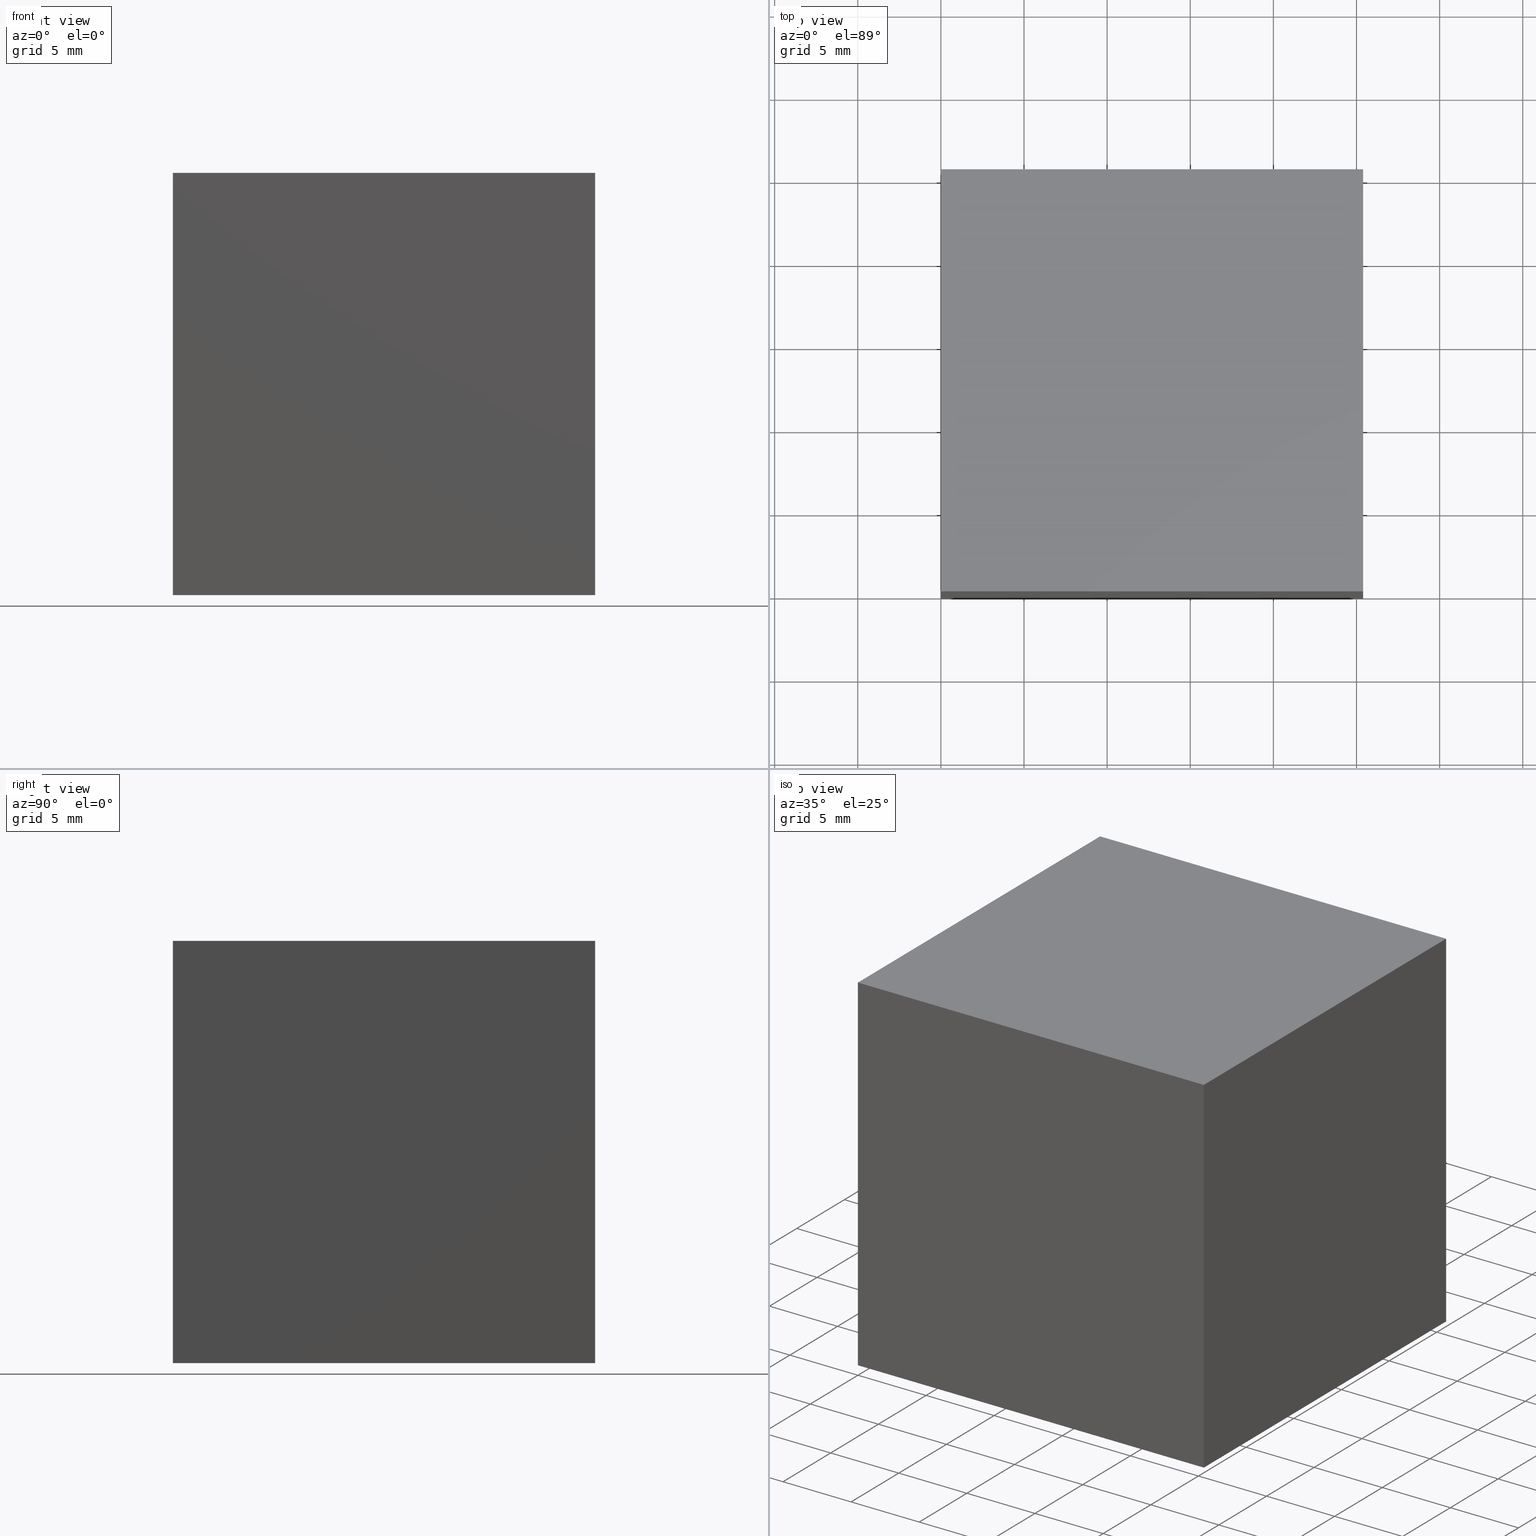
[diagram: canonical four-view strip — front | top / right | iso, engineering-drawing reading convention]
A machine part, canonical four-view strip (front | top / right | iso — engineering-drawing reading convention). The complete STEP part file that produces these views, byte-faithful:
ISO-10303-21;
HEADER;
FILE_DESCRIPTION (( 'STEP AP214' ),
    '1' );
FILE_NAME ('354505.STEP',
    '2019-08-16T02:53:26',
    ( 'user' ),
    ( '΢���й�' ),
    'SwSTEP 2.0',
    'SolidWorks 2016',
    '' );
FILE_SCHEMA (( 'AUTOMOTIVE_DESIGN' ));
ENDSEC;

DATA;
#1 = ORIENTED_EDGE ( 'NONE', *, *, #146, .F. ) ;
#2 = VERTEX_POINT ( 'NONE', #144 ) ;
#3 =( GEOMETRIC_REPRESENTATION_CONTEXT ( 3 ) GLOBAL_UNCERTAINTY_ASSIGNED_CONTEXT ( ( #152 ) ) GLOBAL_UNIT_ASSIGNED_CONTEXT ( ( #7, #140, #12 ) ) REPRESENTATION_CONTEXT ( 'NONE', 'WORKASPACE' ) );
#4 = LINE ( 'NONE', #70, #71 ) ;
#5 = DIRECTION ( 'NONE',  ( 0.0000000000000000000, 0.0000000000000000000, -1.000000000000000000 ) ) ;
#6 = FACE_OUTER_BOUND ( 'NONE', #54, .T. ) ;
#7 =( LENGTH_UNIT ( ) NAMED_UNIT ( * ) SI_UNIT ( .MILLI., .METRE. ) );
#8 = ORIENTED_EDGE ( 'NONE', *, *, #181, .F. ) ;
#9 = CARTESIAN_POINT ( 'NONE',  ( 0.0000000000000000000, 0.0000000000000000000, -25.39999999999999900 ) ) ;
#10 = CARTESIAN_POINT ( 'NONE',  ( 25.39999999999999900, 25.39999999999999900, 0.0000000000000000000 ) ) ;
#11 = FILL_AREA_STYLE_COLOUR ( '', #158 ) ;
#12 =( NAMED_UNIT ( * ) SI_UNIT ( $, .STERADIAN. ) SOLID_ANGLE_UNIT ( ) );
#13 = LINE ( 'NONE', #24, #118 ) ;
#14 = ADVANCED_FACE ( 'NONE', ( #228 ), #285, .T. ) ;
#15 = DIRECTION ( 'NONE',  ( 0.7071067811865474600, 0.0000000000000000000, 0.7071067811865474600 ) ) ;
#16 = ORIENTED_EDGE ( 'NONE', *, *, #129, .T. ) ;
#17 = MANIFOLD_SOLID_BREP ( '͹̨-����2', #246 ) ;
#18 = VECTOR ( 'NONE', #189, 1000.000000000000000 ) ;
#19 = CARTESIAN_POINT ( 'NONE',  ( 25.39999999999999900, 0.0000000000000000000, 0.0000000000000000000 ) ) ;
#20 = STYLED_ITEM ( 'NONE', ( #220 ), #298 ) ;
#21 = LINE ( 'NONE', #103, #216 ) ;
#22 = VERTEX_POINT ( 'NONE', #271 ) ;
#23 = LINE ( 'NONE', #250, #203 ) ;
#24 = CARTESIAN_POINT ( 'NONE',  ( 0.0000000000000000000, 0.0000000000000000000, -25.39999999999999900 ) ) ;
#25 = FACE_OUTER_BOUND ( 'NONE', #172, .T. ) ;
#26 = DIRECTION ( 'NONE',  ( -0.0000000000000000000, -0.0000000000000000000, 1.000000000000000000 ) ) ;
#27 = ORIENTED_EDGE ( 'NONE', *, *, #146, .T. ) ;
#28 = DIRECTION ( 'NONE',  ( 0.0000000000000000000, 0.0000000000000000000, 1.000000000000000000 ) ) ;
#29 = FACE_OUTER_BOUND ( 'NONE', #237, .T. ) ;
#30 = PRESENTATION_LAYER_ASSIGNMENT (  '', '', ( #20 ) ) ;
#31 = ORIENTED_EDGE ( 'NONE', *, *, #192, .F. ) ;
#32 = CARTESIAN_POINT ( 'NONE',  ( 25.39999999999999900, 0.0000000000000000000, -25.39999999999999900 ) ) ;
#33 = SURFACE_STYLE_USAGE ( .BOTH. , #294 ) ;
#34 = DIRECTION ( 'NONE',  ( 0.0000000000000000000, 0.0000000000000000000, 1.000000000000000000 ) ) ;
#35 =( NAMED_UNIT ( * ) PLANE_ANGLE_UNIT ( ) SI_UNIT ( $, .RADIAN. ) );
#36 = ORIENTED_EDGE ( 'NONE', *, *, #122, .F. ) ;
#37 = VERTEX_POINT ( 'NONE', #99 ) ;
#38 = UNCERTAINTY_MEASURE_WITH_UNIT (LENGTH_MEASURE( 1.000000000000000100E-005 ), #82, 'distance_accuracy_value', 'NONE');
#39 = LINE ( 'NONE', #151, #145 ) ;
#40 = DIRECTION ( 'NONE',  ( -0.0000000000000000000, -1.000000000000000000, -0.0000000000000000000 ) ) ;
#41 = MECHANICAL_DESIGN_GEOMETRIC_PRESENTATION_REPRESENTATION (  '', ( #20 ), #58 ) ;
#42 = FILL_AREA_STYLE_COLOUR ( '', #275 ) ;
#43 = DIRECTION ( 'NONE',  ( 0.0000000000000000000, 0.0000000000000000000, -1.000000000000000000 ) ) ;
#44 = CARTESIAN_POINT ( 'NONE',  ( 25.39999999999999900, 25.39999999999999900, 0.0000000000000000000 ) ) ;
#45 = EDGE_LOOP ( 'NONE', ( #268, #219, #8, #47 ) ) ;
#46 = VECTOR ( 'NONE', #136, 1000.000000000000000 ) ;
#47 = ORIENTED_EDGE ( 'NONE', *, *, #122, .T. ) ;
#48 = DIRECTION ( 'NONE',  ( 0.0000000000000000000, -1.000000000000000000, -0.0000000000000000000 ) ) ;
#49 = ORIENTED_EDGE ( 'NONE', *, *, #95, .F. ) ;
#50 = DIRECTION ( 'NONE',  ( 0.0000000000000000000, -1.000000000000000000, 0.0000000000000000000 ) ) ;
#51 = DIRECTION ( 'NONE',  ( 1.000000000000000000, -0.0000000000000000000, -0.0000000000000000000 ) ) ;
#52 = ADVANCED_FACE ( 'NONE', ( #93 ), #244, .T. ) ;
#53 = VECTOR ( 'NONE', #215, 1000.000000000000100 ) ;
#54 = EDGE_LOOP ( 'NONE', ( #113, #295, #90, #123 ) ) ;
#55 =( LENGTH_UNIT ( ) NAMED_UNIT ( * ) SI_UNIT ( .MILLI., .METRE. ) );
#56 = PRODUCT_CONTEXT ( 'NONE', #177, 'mechanical' ) ;
#57 = DIRECTION ( 'NONE',  ( 1.000000000000000000, -0.0000000000000000000, -0.0000000000000000000 ) ) ;
#58 =( GEOMETRIC_REPRESENTATION_CONTEXT ( 3 ) GLOBAL_UNCERTAINTY_ASSIGNED_CONTEXT ( ( #243 ) ) GLOBAL_UNIT_ASSIGNED_CONTEXT ( ( #127, #297, #153 ) ) REPRESENTATION_CONTEXT ( 'NONE', 'WORKASPACE' ) );
#59 = ORIENTED_EDGE ( 'NONE', *, *, #110, .F. ) ;
#60 = AXIS2_PLACEMENT_3D ( 'NONE', #207, #240, #143 ) ;
#61 = ORIENTED_EDGE ( 'NONE', *, *, #226, .T. ) ;
#62 = LINE ( 'NONE', #80, #209 ) ;
#63 = CARTESIAN_POINT ( 'NONE',  ( 0.0000000000000000000, 25.39999999999999900, -25.39999999999999900 ) ) ;
#64 = DIRECTION ( 'NONE',  ( -0.7071067811865474600, -0.0000000000000000000, -0.7071067811865474600 ) ) ;
#65 = EDGE_LOOP ( 'NONE', ( #16, #36, #191, #208 ) ) ;
#66 = LINE ( 'NONE', #242, #199 ) ;
#67 = CARTESIAN_POINT ( 'NONE',  ( 0.0000000000000000000, 25.39999999999999900, 0.0000000000000000000 ) ) ;
#68 = VERTEX_POINT ( 'NONE', #19 ) ;
#69 = VECTOR ( 'NONE', #116, 1000.000000000000000 ) ;
#70 = CARTESIAN_POINT ( 'NONE',  ( 0.0000000000000000000, 25.39999999999999900, 0.0000000000000000000 ) ) ;
#71 = VECTOR ( 'NONE', #120, 1000.000000000000000 ) ;
#72 = DIRECTION ( 'NONE',  ( -0.7071067811865475700, 0.0000000000000000000, 0.7071067811865475700 ) ) ;
#73 = PRODUCT_DEFINITION_CONTEXT ( 'detailed design', #229, 'design' ) ;
#74 = ADVANCED_FACE ( 'NONE', ( #255 ), #126, .T. ) ;
#75 = DIRECTION ( 'NONE',  ( -0.7071067811865474600, -0.0000000000000000000, -0.7071067811865474600 ) ) ;
#76 = CLOSED_SHELL ( 'NONE', ( #149, #174, #293, #98, #74 ) ) ;
#77 = LINE ( 'NONE', #168, #130 ) ;
#78 = SURFACE_SIDE_STYLE ('',( #84 ) ) ;
#79 = APPLICATION_PROTOCOL_DEFINITION ( 'draft international standard', 'automotive_design', 1998, #229 ) ;
#80 = CARTESIAN_POINT ( 'NONE',  ( 0.0000000000000000000, 25.39999999999999900, -25.39999999999999900 ) ) ;
#81 = LINE ( 'NONE', #32, #260 ) ;
#82 =( LENGTH_UNIT ( ) NAMED_UNIT ( * ) SI_UNIT ( .MILLI., .METRE. ) );
#83 = ORIENTED_EDGE ( 'NONE', *, *, #270, .T. ) ;
#84 = SURFACE_STYLE_FILL_AREA ( #204 ) ;
#85 = CARTESIAN_POINT ( 'NONE',  ( 25.39999999999999900, 25.39999999999999900, 0.0000000000000000000 ) ) ;
#86 = LINE ( 'NONE', #159, #266 ) ;
#87 = FILL_AREA_STYLE ('',( #42 ) ) ;
#88 = AXIS2_PLACEMENT_3D ( 'NONE', #205, #91, #263 ) ;
#89 = PLANE ( 'NONE',  #257 ) ;
#90 = ORIENTED_EDGE ( 'NONE', *, *, #162, .F. ) ;
#91 = DIRECTION ( 'NONE',  ( 0.0000000000000000000, -1.000000000000000000, -0.0000000000000000000 ) ) ;
#92 = UNCERTAINTY_MEASURE_WITH_UNIT (LENGTH_MEASURE( 1.000000000000000100E-005 ), #55, 'distance_accuracy_value', 'NONE');
#93 = FACE_OUTER_BOUND ( 'NONE', #232, .T. ) ;
#94 = PRESENTATION_STYLE_ASSIGNMENT (( #265 ) ) ;
#95 = EDGE_CURVE ( 'NONE', #22, #233, #125, .T. ) ;
#96 = ORIENTED_EDGE ( 'NONE', *, *, #192, .T. ) ;
#97 = LINE ( 'NONE', #111, #142 ) ;
#98 = ADVANCED_FACE ( 'NONE', ( #286 ), #196, .F. ) ;
#99 = CARTESIAN_POINT ( 'NONE',  ( 25.39999999999999900, 0.0000000000000000000, -25.39999999999999900 ) ) ;
#100 = ORIENTED_EDGE ( 'NONE', *, *, #95, .T. ) ;
#101 = PLANE ( 'NONE',  #287 ) ;
#102 = LINE ( 'NONE', #112, #251 ) ;
#103 = CARTESIAN_POINT ( 'NONE',  ( 0.0000000000000000000, 25.39999999999999900, -25.39999999999999900 ) ) ;
#104 =( NAMED_UNIT ( * ) SI_UNIT ( $, .STERADIAN. ) SOLID_ANGLE_UNIT ( ) );
#105 = AXIS2_PLACEMENT_3D ( 'NONE', #179, #34, #206 ) ;
#106 = COLOUR_RGB ( '',1.000000000000000000, 1.000000000000000000, 1.000000000000000000 ) ;
#107 = VERTEX_POINT ( 'NONE', #9 ) ;
#108 = EDGE_LOOP ( 'NONE', ( #166, #165, #156 ) ) ;
#109 = CARTESIAN_POINT ( 'NONE',  ( 0.0000000000000000000, 25.39999999999999900, 0.0000000000000000000 ) ) ;
#110 = EDGE_CURVE ( 'NONE', #197, #248, #132, .T. ) ;
#111 = CARTESIAN_POINT ( 'NONE',  ( 0.0000000000000000000, 0.0000000000000000000, 0.0000000000000000000 ) ) ;
#112 = CARTESIAN_POINT ( 'NONE',  ( 25.39999999999999900, 25.39999999999999900, -25.39999999999999900 ) ) ;
#113 = ORIENTED_EDGE ( 'NONE', *, *, #239, .T. ) ;
#114 = PRESENTATION_STYLE_ASSIGNMENT (( #33 ) ) ;
#115 = ORIENTED_EDGE ( 'NONE', *, *, #256, .T. ) ;
#116 = DIRECTION ( 'NONE',  ( 1.000000000000000000, 0.0000000000000000000, 0.0000000000000000000 ) ) ;
#117 = SURFACE_SIDE_STYLE ('',( #284 ) ) ;
#118 = VECTOR ( 'NONE', #64, 1000.000000000000100 ) ;
#119 = AXIS2_PLACEMENT_3D ( 'NONE', #141, #48, #194 ) ;
#120 = DIRECTION ( 'NONE',  ( -0.0000000000000000000, -0.0000000000000000000, 1.000000000000000000 ) ) ;
#121 = DIRECTION ( 'NONE',  ( 0.0000000000000000000, 0.0000000000000000000, -1.000000000000000000 ) ) ;
#122 = EDGE_CURVE ( 'NONE', #254, #68, #23, .T. ) ;
#123 = ORIENTED_EDGE ( 'NONE', *, *, #198, .T. ) ;
#124 = PLANE ( 'NONE',  #190 ) ;
#125 = LINE ( 'NONE', #283, #69 ) ;
#126 = PLANE ( 'NONE',  #88 ) ;
#127 =( LENGTH_UNIT ( ) NAMED_UNIT ( * ) SI_UNIT ( .MILLI., .METRE. ) );
#128 = APPLICATION_PROTOCOL_DEFINITION ( 'draft international standard', 'automotive_design', 1998, #177 ) ;
#129 = EDGE_CURVE ( 'NONE', #212, #68, #77, .T. ) ;
#130 = VECTOR ( 'NONE', #57, 1000.000000000000000 ) ;
#131 = ORIENTED_EDGE ( 'NONE', *, *, #139, .F. ) ;
#132 = LINE ( 'NONE', #171, #193 ) ;
#133 = DIRECTION ( 'NONE',  ( -1.000000000000000000, 0.0000000000000000000, -0.0000000000000000000 ) ) ;
#134 = SURFACE_STYLE_FILL_AREA ( #87 ) ;
#135 = PRODUCT_DEFINITION ( 'δ֪', '', #154, #73 ) ;
#136 = DIRECTION ( 'NONE',  ( -0.0000000000000000000, -1.000000000000000000, -0.0000000000000000000 ) ) ;
#137 = CARTESIAN_POINT ( 'NONE',  ( 0.0000000000000000000, 0.0000000000000000000, -25.39999999999999900 ) ) ;
#138 = EDGE_LOOP ( 'NONE', ( #262, #241, #49 ) ) ;
#139 = EDGE_CURVE ( 'NONE', #22, #2, #62, .T. ) ;
#140 =( NAMED_UNIT ( * ) PLANE_ANGLE_UNIT ( ) SI_UNIT ( $, .RADIAN. ) );
#141 = CARTESIAN_POINT ( 'NONE',  ( 0.0000000000000000000, 25.39999999999999900, 0.0000000000000000000 ) ) ;
#142 = VECTOR ( 'NONE', #26, 1000.000000000000000 ) ;
#143 = DIRECTION ( 'NONE',  ( 0.7071067811865474600, 0.0000000000000000000, 0.7071067811865474600 ) ) ;
#144 = CARTESIAN_POINT ( 'NONE',  ( 0.0000000000000000000, 0.0000000000000000000, -25.39999999999999900 ) ) ;
#145 = VECTOR ( 'NONE', #247, 1000.000000000000000 ) ;
#146 = EDGE_CURVE ( 'NONE', #248, #2, #66, .T. ) ;
#147 = VERTEX_POINT ( 'NONE', #167 ) ;
#148 = VECTOR ( 'NONE', #51, 1000.000000000000000 ) ;
#149 = ADVANCED_FACE ( 'NONE', ( #188 ), #150, .F. ) ;
#150 = PLANE ( 'NONE',  #155 ) ;
#151 = CARTESIAN_POINT ( 'NONE',  ( 25.39999999999999900, 25.39999999999999900, -25.39999999999999900 ) ) ;
#152 = UNCERTAINTY_MEASURE_WITH_UNIT (LENGTH_MEASURE( 1.000000000000000100E-005 ), #7, 'distance_accuracy_value', 'NONE');
#153 =( NAMED_UNIT ( * ) SI_UNIT ( $, .STERADIAN. ) SOLID_ANGLE_UNIT ( ) );
#154 = PRODUCT_DEFINITION_FORMATION_WITH_SPECIFIED_SOURCE ( '�κ�', '', #221, .NOT_KNOWN. ) ;
#155 = AXIS2_PLACEMENT_3D ( 'NONE', #10, #121, #201 ) ;
#156 = ORIENTED_EDGE ( 'NONE', *, *, #213, .F. ) ;
#157 = EDGE_CURVE ( 'NONE', #37, #248, #81, .T. ) ;
#158 = COLOUR_RGB ( '',1.000000000000000000, 1.000000000000000000, 1.000000000000000000 ) ;
#159 = CARTESIAN_POINT ( 'NONE',  ( 0.0000000000000000000, 25.39999999999999900, -25.39999999999999900 ) ) ;
#160 = LINE ( 'NONE', #225, #148 ) ;
#161 = CARTESIAN_POINT ( 'NONE',  ( 0.0000000000000000000, 25.39999999999999900, 0.0000000000000000000 ) ) ;
#162 = EDGE_CURVE ( 'NONE', #147, #291, #4, .T. ) ;
#163 = PLANE ( 'NONE',  #231 ) ;
#164 = CARTESIAN_POINT ( 'NONE',  ( 25.39999999999999900, 0.0000000000000000000, 0.0000000000000000000 ) ) ;
#165 = ORIENTED_EDGE ( 'NONE', *, *, #239, .F. ) ;
#166 = ORIENTED_EDGE ( 'NONE', *, *, #129, .F. ) ;
#167 = CARTESIAN_POINT ( 'NONE',  ( 0.0000000000000000000, 25.39999999999999900, -25.39999999999999900 ) ) ;
#168 = CARTESIAN_POINT ( 'NONE',  ( 25.39999999999999900, 0.0000000000000000000, 0.0000000000000000000 ) ) ;
#169 = FACE_OUTER_BOUND ( 'NONE', #138, .T. ) ;
#170 = PRODUCT_RELATED_PRODUCT_CATEGORY ( 'part', '', ( #221 ) ) ;
#171 = CARTESIAN_POINT ( 'NONE',  ( 25.39999999999999900, 25.39999999999999900, 0.0000000000000000000 ) ) ;
#172 = EDGE_LOOP ( 'NONE', ( #27, #115, #301 ) ) ;
#173 = CARTESIAN_POINT ( 'NONE',  ( 25.39999999999999900, 25.39999999999999900, 0.0000000000000000000 ) ) ;
#174 = ADVANCED_FACE ( 'NONE', ( #230 ), #124, .F. ) ;
#175 = EDGE_CURVE ( 'NONE', #291, #254, #160, .T. ) ;
#176 = EDGE_LOOP ( 'NONE', ( #187, #281, #202 ) ) ;
#177 = APPLICATION_CONTEXT ( 'automotive_design' ) ;
#178 = DIRECTION ( 'NONE',  ( 0.0000000000000000000, -1.000000000000000000, 0.0000000000000000000 ) ) ;
#179 = CARTESIAN_POINT ( 'NONE',  ( 0.0000000000000000000, 0.0000000000000000000, 0.0000000000000000000 ) ) ;
#180 = DIRECTION ( 'NONE',  ( 1.000000000000000000, 0.0000000000000000000, -0.0000000000000000000 ) ) ;
#181 = EDGE_CURVE ( 'NONE', #254, #147, #21, .T. ) ;
#182 = ORIENTED_EDGE ( 'NONE', *, *, #157, .F. ) ;
#183 = DIRECTION ( 'NONE',  ( 1.000000000000000000, -0.0000000000000000000, 0.0000000000000000000 ) ) ;
#184 = ORIENTED_EDGE ( 'NONE', *, *, #139, .T. ) ;
#185 = CARTESIAN_POINT ( 'NONE',  ( 0.0000000000000000000, 0.0000000000000000000, 0.0000000000000000000 ) ) ;
#186 = DIRECTION ( 'NONE',  ( 0.0000000000000000000, -1.000000000000000000, 0.0000000000000000000 ) ) ;
#187 = ORIENTED_EDGE ( 'NONE', *, *, #175, .T. ) ;
#188 = FACE_OUTER_BOUND ( 'NONE', #65, .T. ) ;
#189 = DIRECTION ( 'NONE',  ( 1.000000000000000000, 0.0000000000000000000, 0.0000000000000000000 ) ) ;
#190 = AXIS2_PLACEMENT_3D ( 'NONE', #292, #72, #15 ) ;
#191 = ORIENTED_EDGE ( 'NONE', *, *, #175, .F. ) ;
#192 = EDGE_CURVE ( 'NONE', #233, #37, #39, .T. ) ;
#193 = VECTOR ( 'NONE', #178, 1000.000000000000000 ) ;
#194 = DIRECTION ( 'NONE',  ( 0.0000000000000000000, 0.0000000000000000000, -1.000000000000000000 ) ) ;
#195 = SHAPE_DEFINITION_REPRESENTATION ( #252, #298 ) ;
#196 = PLANE ( 'NONE',  #119 ) ;
#197 = VERTEX_POINT ( 'NONE', #173 ) ;
#198 = EDGE_CURVE ( 'NONE', #147, #107, #86, .T. ) ;
#199 = VECTOR ( 'NONE', #299, 1000.000000000000100 ) ;
#200 = ADVANCED_FACE ( 'NONE', ( #29 ), #258, .T. ) ;
#201 = DIRECTION ( 'NONE',  ( -1.000000000000000000, 0.0000000000000000000, -0.0000000000000000000 ) ) ;
#202 = ORIENTED_EDGE ( 'NONE', *, *, #162, .T. ) ;
#203 = VECTOR ( 'NONE', #296, 1000.000000000000000 ) ;
#204 = FILL_AREA_STYLE ('',( #234 ) ) ;
#205 = CARTESIAN_POINT ( 'NONE',  ( 0.0000000000000000000, 0.0000000000000000000, 0.0000000000000000000 ) ) ;
#206 = DIRECTION ( 'NONE',  ( 1.000000000000000000, 0.0000000000000000000, 0.0000000000000000000 ) ) ;
#207 = CARTESIAN_POINT ( 'NONE',  ( 25.39999999999999900, 25.39999999999999900, 0.0000000000000000000 ) ) ;
#208 = ORIENTED_EDGE ( 'NONE', *, *, #218, .T. ) ;
#209 = VECTOR ( 'NONE', #50, 1000.000000000000000 ) ;
#210 = DIRECTION ( 'NONE',  ( 0.0000000000000000000, 0.0000000000000000000, -1.000000000000000000 ) ) ;
#211 = STYLED_ITEM ( 'NONE', ( #114 ), #214 ) ;
#212 = VERTEX_POINT ( 'NONE', #185 ) ;
#213 = EDGE_CURVE ( 'NONE', #68, #107, #13, .T. ) ;
#214 = MANIFOLD_SOLID_BREP ( '͹̨-����1', #76 ) ;
#215 = DIRECTION ( 'NONE',  ( -0.7071067811865474600, 0.0000000000000000000, -0.7071067811865474600 ) ) ;
#216 = VECTOR ( 'NONE', #75, 1000.000000000000100 ) ;
#217 = CARTESIAN_POINT ( 'NONE',  ( 0.0000000000000000000, 0.0000000000000000000, 0.0000000000000000000 ) ) ;
#218 = EDGE_CURVE ( 'NONE', #291, #212, #282, .T. ) ;
#219 = ORIENTED_EDGE ( 'NONE', *, *, #198, .F. ) ;
#220 = PRESENTATION_STYLE_ASSIGNMENT (( #272 ) ) ;
#221 = PRODUCT ( '354505', '354505', '', ( #56 ) ) ;
#222 = ORIENTED_EDGE ( 'NONE', *, *, #256, .F. ) ;
#223 = ADVANCED_FACE ( 'NONE', ( #25 ), #163, .T. ) ;
#224 = AXIS2_PLACEMENT_3D ( 'NONE', #63, #278, #133 ) ;
#225 = CARTESIAN_POINT ( 'NONE',  ( 25.39999999999999900, 25.39999999999999900, 0.0000000000000000000 ) ) ;
#226 = EDGE_CURVE ( 'NONE', #233, #197, #102, .T. ) ;
#227 =( NAMED_UNIT ( * ) PLANE_ANGLE_UNIT ( ) SI_UNIT ( $, .RADIAN. ) );
#228 = FACE_OUTER_BOUND ( 'NONE', #277, .T. ) ;
#229 = APPLICATION_CONTEXT ( 'automotive_design' ) ;
#230 = FACE_OUTER_BOUND ( 'NONE', #45, .T. ) ;
#231 = AXIS2_PLACEMENT_3D ( 'NONE', #217, #186, #43 ) ;
#232 = EDGE_LOOP ( 'NONE', ( #1, #59, #83, #184 ) ) ;
#233 = VERTEX_POINT ( 'NONE', #236 ) ;
#234 = FILL_AREA_STYLE_COLOUR ( '', #106 ) ;
#235 = CARTESIAN_POINT ( 'NONE',  ( 0.0000000000000000000, 25.39999999999999900, 0.0000000000000000000 ) ) ;
#236 = CARTESIAN_POINT ( 'NONE',  ( 25.39999999999999900, 25.39999999999999900, -25.39999999999999900 ) ) ;
#237 = EDGE_LOOP ( 'NONE', ( #222, #131, #100, #96 ) ) ;
#238 = PRESENTATION_LAYER_ASSIGNMENT (  '', '', ( #211 ) ) ;
#239 = EDGE_CURVE ( 'NONE', #107, #212, #97, .T. ) ;
#240 = DIRECTION ( 'NONE',  ( -0.7071067811865475700, 0.0000000000000000000, 0.7071067811865475700 ) ) ;
#241 = ORIENTED_EDGE ( 'NONE', *, *, #226, .F. ) ;
#242 = CARTESIAN_POINT ( 'NONE',  ( 25.39999999999999900, 0.0000000000000000000, 0.0000000000000000000 ) ) ;
#243 = UNCERTAINTY_MEASURE_WITH_UNIT (LENGTH_MEASURE( 1.000000000000000100E-005 ), #127, 'distance_accuracy_value', 'NONE');
#244 = PLANE ( 'NONE',  #60 ) ;
#245 = STYLED_ITEM ( 'NONE', ( #94 ), #17 ) ;
#246 = CLOSED_SHELL ( 'NONE', ( #52, #14, #200, #269, #223 ) ) ;
#247 = DIRECTION ( 'NONE',  ( 0.0000000000000000000, -1.000000000000000000, 0.0000000000000000000 ) ) ;
#248 = VERTEX_POINT ( 'NONE', #164 ) ;
#249 =( NAMED_UNIT ( * ) SI_UNIT ( $, .STERADIAN. ) SOLID_ANGLE_UNIT ( ) );
#250 = CARTESIAN_POINT ( 'NONE',  ( 25.39999999999999900, 25.39999999999999900, 0.0000000000000000000 ) ) ;
#251 = VECTOR ( 'NONE', #279, 1000.000000000000000 ) ;
#252 = PRODUCT_DEFINITION_SHAPE ( 'NONE', 'NONE',  #135 ) ;
#253 = MECHANICAL_DESIGN_GEOMETRIC_PRESENTATION_REPRESENTATION (  '', ( #211 ), #267 ) ;
#254 = VERTEX_POINT ( 'NONE', #44 ) ;
#255 = FACE_OUTER_BOUND ( 'NONE', #108, .T. ) ;
#256 = EDGE_CURVE ( 'NONE', #2, #37, #300, .T. ) ;
#257 = AXIS2_PLACEMENT_3D ( 'NONE', #67, #280, #5 ) ;
#258 = PLANE ( 'NONE',  #224 ) ;
#259 = ORIENTED_EDGE ( 'NONE', *, *, #110, .T. ) ;
#260 = VECTOR ( 'NONE', #28, 1000.000000000000000 ) ;
#261 = AXIS2_PLACEMENT_3D ( 'NONE', #264, #180, #273 ) ;
#262 = ORIENTED_EDGE ( 'NONE', *, *, #270, .F. ) ;
#263 = DIRECTION ( 'NONE',  ( 0.0000000000000000000, 0.0000000000000000000, -1.000000000000000000 ) ) ;
#264 = CARTESIAN_POINT ( 'NONE',  ( 25.39999999999999900, 25.39999999999999900, -25.39999999999999900 ) ) ;
#265 = SURFACE_STYLE_USAGE ( .BOTH. , #117 ) ;
#266 = VECTOR ( 'NONE', #40, 1000.000000000000000 ) ;
#267 =( GEOMETRIC_REPRESENTATION_CONTEXT ( 3 ) GLOBAL_UNCERTAINTY_ASSIGNED_CONTEXT ( ( #92 ) ) GLOBAL_UNIT_ASSIGNED_CONTEXT ( ( #55, #227, #249 ) ) REPRESENTATION_CONTEXT ( 'NONE', 'WORKASPACE' ) );
#268 = ORIENTED_EDGE ( 'NONE', *, *, #213, .T. ) ;
#269 = ADVANCED_FACE ( 'NONE', ( #169 ), #89, .F. ) ;
#270 = EDGE_CURVE ( 'NONE', #197, #22, #289, .T. ) ;
#271 = CARTESIAN_POINT ( 'NONE',  ( 0.0000000000000000000, 25.39999999999999900, -25.39999999999999900 ) ) ;
#272 = SURFACE_STYLE_USAGE ( .BOTH. , #78 ) ;
#273 = DIRECTION ( 'NONE',  ( -0.0000000000000000000, 0.0000000000000000000, -1.000000000000000000 ) ) ;
#274 =( GEOMETRIC_REPRESENTATION_CONTEXT ( 3 ) GLOBAL_UNCERTAINTY_ASSIGNED_CONTEXT ( ( #38 ) ) GLOBAL_UNIT_ASSIGNED_CONTEXT ( ( #82, #35, #104 ) ) REPRESENTATION_CONTEXT ( 'NONE', 'WORKASPACE' ) );
#275 = COLOUR_RGB ( '',1.000000000000000000, 1.000000000000000000, 1.000000000000000000 ) ;
#276 = PRESENTATION_LAYER_ASSIGNMENT (  '', '', ( #245 ) ) ;
#277 = EDGE_LOOP ( 'NONE', ( #182, #31, #61, #259 ) ) ;
#278 = DIRECTION ( 'NONE',  ( 0.0000000000000000000, 0.0000000000000000000, -1.000000000000000000 ) ) ;
#279 = DIRECTION ( 'NONE',  ( 0.0000000000000000000, 0.0000000000000000000, 1.000000000000000000 ) ) ;
#280 = DIRECTION ( 'NONE',  ( 0.0000000000000000000, -1.000000000000000000, 0.0000000000000000000 ) ) ;
#281 = ORIENTED_EDGE ( 'NONE', *, *, #181, .T. ) ;
#282 = LINE ( 'NONE', #235, #46 ) ;
#283 = CARTESIAN_POINT ( 'NONE',  ( 0.0000000000000000000, 25.39999999999999900, -25.39999999999999900 ) ) ;
#284 = SURFACE_STYLE_FILL_AREA ( #288 ) ;
#285 = PLANE ( 'NONE',  #261 ) ;
#286 = FACE_OUTER_BOUND ( 'NONE', #176, .T. ) ;
#287 = AXIS2_PLACEMENT_3D ( 'NONE', #109, #183, #210 ) ;
#288 = FILL_AREA_STYLE ('',( #11 ) ) ;
#289 = LINE ( 'NONE', #85, #53 ) ;
#290 = MECHANICAL_DESIGN_GEOMETRIC_PRESENTATION_REPRESENTATION (  '', ( #245 ), #3 ) ;
#291 = VERTEX_POINT ( 'NONE', #161 ) ;
#292 = CARTESIAN_POINT ( 'NONE',  ( 0.0000000000000000000, 25.39999999999999900, -25.39999999999999900 ) ) ;
#293 = ADVANCED_FACE ( 'NONE', ( #6 ), #101, .F. ) ;
#294 = SURFACE_SIDE_STYLE ('',( #134 ) ) ;
#295 = ORIENTED_EDGE ( 'NONE', *, *, #218, .F. ) ;
#296 = DIRECTION ( 'NONE',  ( -0.0000000000000000000, -1.000000000000000000, -0.0000000000000000000 ) ) ;
#297 =( NAMED_UNIT ( * ) PLANE_ANGLE_UNIT ( ) SI_UNIT ( $, .RADIAN. ) );
#298 = ADVANCED_BREP_SHAPE_REPRESENTATION ( '354505', ( #214, #17, #105 ), #274 ) ;
#299 = DIRECTION ( 'NONE',  ( -0.7071067811865474600, 0.0000000000000000000, -0.7071067811865474600 ) ) ;
#300 = LINE ( 'NONE', #137, #18 ) ;
#301 = ORIENTED_EDGE ( 'NONE', *, *, #157, .T. ) ;
ENDSEC;
END-ISO-10303-21;
